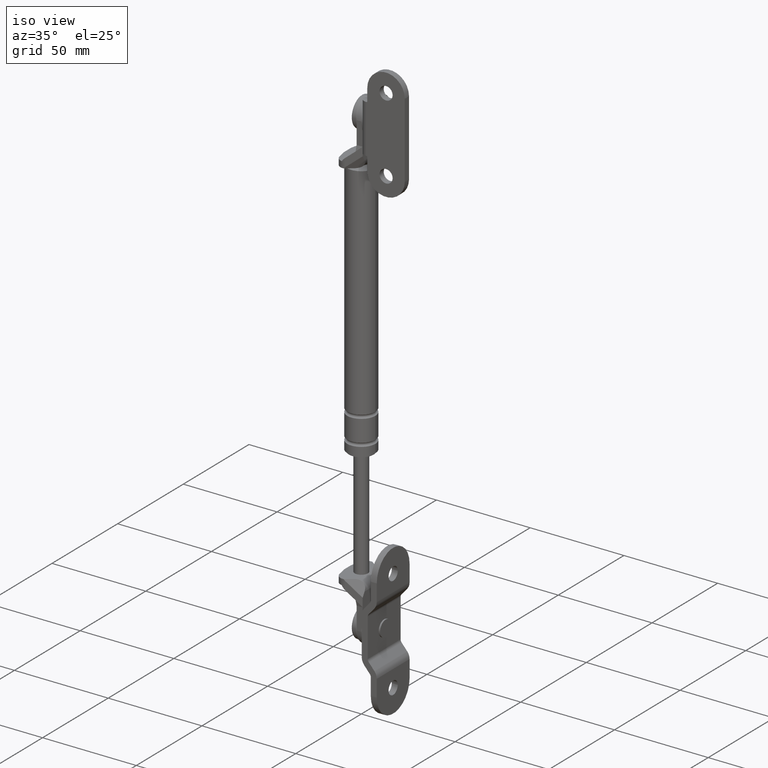
[diagram: clean part render]
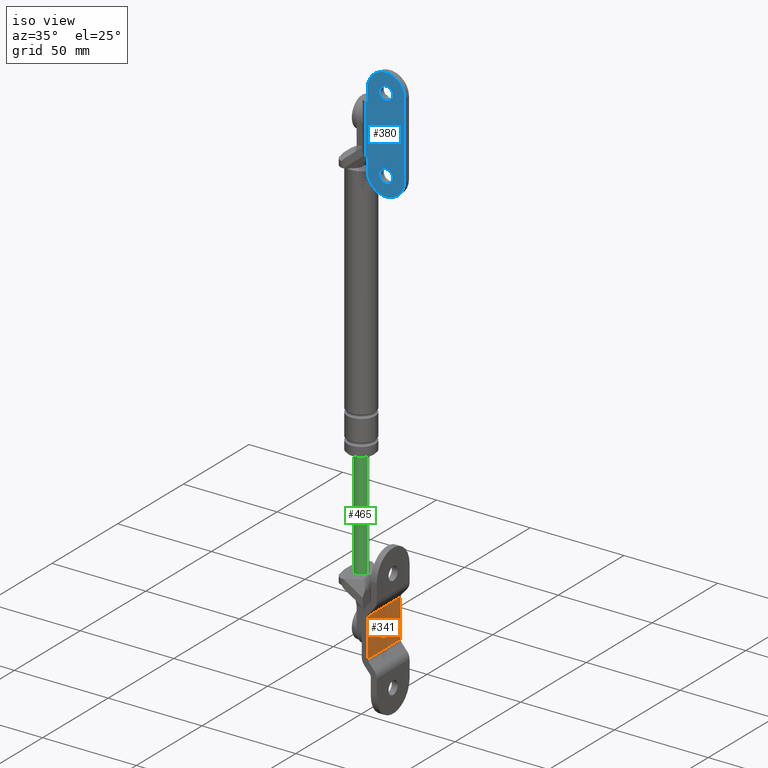
[diagram: same view with three faces highlighted in distinct colors, each labeled with its STEP entity id]
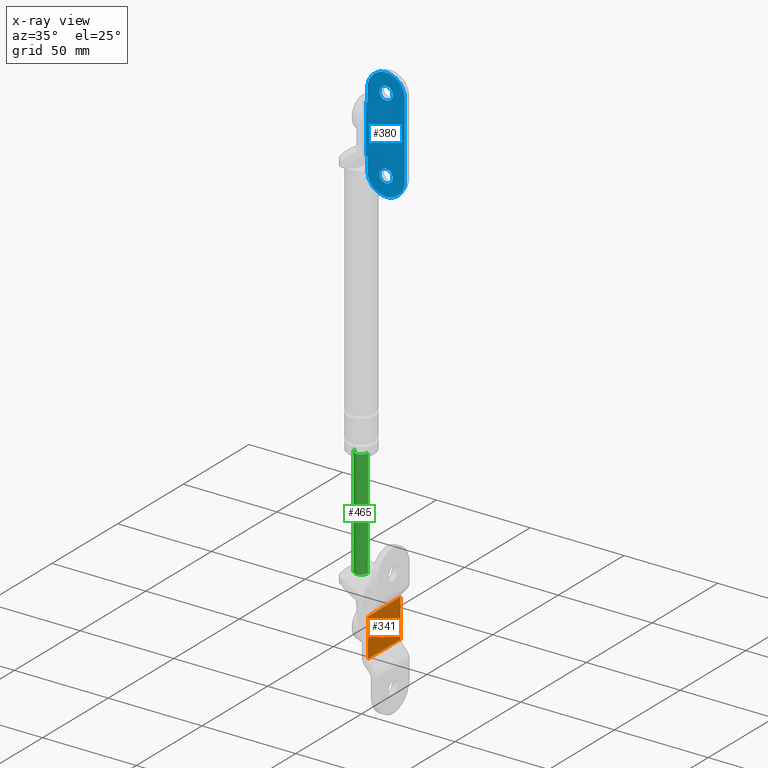
[diagram: x-ray of the same camera — body ghosted, the three highlighted faces saturated]
A machine part, iso view with three faces highlighted in distinct colors.
The next image is the same camera in x-ray (body ghosted, the three faces saturated) — at least one of them is partly hidden behind the body in this view.
Their STEP definitions:

[orange] entity #341 — the highlighted planar face has unit normal (-1, 0, 0).
#341=ADVANCED_FACE('',(#645,#646),#644,.F.);
#644=PLANE('',#2025);
#645=FACE_OUTER_BOUND('',#2026,.T.);
#646=FACE_BOUND('',#2027,.T.);
#2022=CARTESIAN_POINT('',(8.29409186090E+001,0.00000000000E+000,1.47258453631E+002));
#2023=DIRECTION('',(0.00000000000E+000,1.00000000000E+000,0.00000000000E+000));
#2024=DIRECTION('',(0.00000000000E+000,0.00000000000E+000,1.00000000000E+000));
#2025=AXIS2_PLACEMENT_3D('',#2022,#2023,#2024);
#2026=EDGE_LOOP('',(#3056,#3057,#3058,#3059));
#2027=EDGE_LOOP('',(#3060,#3061));
#3056=ORIENTED_EDGE('',*,*,#3739,.T.);
#3057=ORIENTED_EDGE('',*,*,#3738,.F.);
#3058=ORIENTED_EDGE('',*,*,#3740,.F.);
#3059=ORIENTED_EDGE('',*,*,#3741,.T.);
#3060=ORIENTED_EDGE('',*,*,#3742,.F.);
#3061=ORIENTED_EDGE('',*,*,#3743,.F.);
#3738=EDGE_CURVE('',#4340,#4333,#4347,.T.);
#3739=EDGE_CURVE('',#4353,#4333,#4354,.T.);
#3740=EDGE_CURVE('',#4360,#4340,#4361,.T.);
#3741=EDGE_CURVE('',#4360,#4353,#4367,.T.);
#3742=EDGE_CURVE('',#4373,#4374,#4375,.T.);
#3743=EDGE_CURVE('',#4374,#4373,#4381,.T.);
#4333=VERTEX_POINT('',#6581);
#4340=VERTEX_POINT('',#6586);
#4347=LINE('',#6591,#6592);
#4353=VERTEX_POINT('',#6594);
#4354=LINE('',#6595,#6596);
#4360=VERTEX_POINT('',#6598);
#4361=LINE('',#6599,#6600);
#4367=LINE('',#6602,#6603);
#4373=VERTEX_POINT('',#6605);
#4374=VERTEX_POINT('',#6606);
#4375=CIRCLE('',#6610,4.25000000000E+000);
#4381=CIRCLE('',#6614,4.25000000000E+000);
#6581=CARTESIAN_POINT('',(1.05504404217E+002,0.00000000000E+000,1.49758453631E+002));
#6586=CARTESIAN_POINT('',(1.05504404217E+002,0.00000000000E+000,1.74758453631E+002));
#6591=CARTESIAN_POINT('',(1.05504404217E+002,0.00000000000E+000,1.74758453631E+002));
#6592=VECTOR('',#6593,2.50000000000E+001);
#6593=DIRECTION('',(0.00000000000E+000,0.00000000000E+000,-1.00000000000E+000));
#6594=CARTESIAN_POINT('',(8.49921445734E+001,-1.99840144433E-015,1.49758453631E+002));
#6595=CARTESIAN_POINT('',(8.49921445734E+001,0.00000000000E+000,1.49758453631E+002));
#6596=VECTOR('',#6597,2.05122596438E+001);
#6597=DIRECTION('',(1.00000000000E+000,0.00000000000E+000,0.00000000000E+000));
#6598=CARTESIAN_POINT('',(8.49921445734E+001,-1.99840144433E-015,1.74758453631E+002));
#6599=CARTESIAN_POINT('',(8.49921445734E+001,0.00000000000E+000,1.74758453631E+002));
#6600=VECTOR('',#6601,2.05122596438E+001);
#6601=DIRECTION('',(1.00000000000E+000,0.00000000000E+000,0.00000000000E+000));
#6602=CARTESIAN_POINT('',(8.49921445734E+001,-1.99840144433E-015,1.74758453631E+002));
#6603=VECTOR('',#6604,2.50000000000E+001);
#6604=DIRECTION('',(0.00000000000E+000,0.00000000000E+000,-1.00000000000E+000));
#6605=CARTESIAN_POINT('',(9.52482743953E+001,0.00000000000E+000,1.58008453631E+002));
#6606=CARTESIAN_POINT('',(9.52482743953E+001,0.00000000000E+000,1.66508453631E+002));
#6607=CARTESIAN_POINT('',(9.52482743953E+001,0.00000000000E+000,1.62258453631E+002));
#6608=DIRECTION('',(-0.00000000000E+000,-1.00000000000E+000,0.00000000000E+000));
#6609=DIRECTION('',(-1.22460635382E-016,0.00000000000E+000,1.00000000000E+000));
#6610=AXIS2_PLACEMENT_3D('',#6607,#6608,#6609);
#6611=CARTESIAN_POINT('',(9.52482743953E+001,0.00000000000E+000,1.62258453631E+002));
#6612=DIRECTION('',(-0.00000000000E+000,-1.00000000000E+000,0.00000000000E+000));
#6613=DIRECTION('',(-1.22460635382E-016,0.00000000000E+000,1.00000000000E+000));
#6614=AXIS2_PLACEMENT_3D('',#6611,#6612,#6613);

[blue] entity #380 — the highlighted planar face has unit normal (0, -1, 0).
#380=ADVANCED_FACE('',(#1040,#1041,#1042),#1039,.T.);
#1039=PLANE('',#2309);
#1040=FACE_OUTER_BOUND('',#2310,.T.);
#1041=FACE_BOUND('',#2311,.T.);
#1042=FACE_BOUND('',#2312,.T.);
#2306=CARTESIAN_POINT('',(6.63047447386E+001,-2.28800000000E+001,1.90587479342E+002));
#2307=DIRECTION('',(0.00000000000E+000,0.00000000000E+000,1.00000000000E+000));
#2308=DIRECTION('',(1.00000000000E+000,0.00000000000E+000,0.00000000000E+000));
#2309=AXIS2_PLACEMENT_3D('',#2306,#2307,#2308);
#2310=EDGE_LOOP('',(#3248,#3249,#3250,#3251,#3252,#3253,#3254,#3255,#3256,#3257));
#2311=EDGE_LOOP('',(#3258,#3259));
#2312=EDGE_LOOP('',(#3260,#3261));
#3248=ORIENTED_EDGE('',*,*,#3833,.F.);
#3249=ORIENTED_EDGE('',*,*,#3834,.T.);
#3250=ORIENTED_EDGE('',*,*,#3835,.F.);
#3251=ORIENTED_EDGE('',*,*,#3836,.T.);
#3252=ORIENTED_EDGE('',*,*,#3831,.F.);
#3253=ORIENTED_EDGE('',*,*,#3828,.F.);
#3254=ORIENTED_EDGE('',*,*,#3837,.F.);
#3255=ORIENTED_EDGE('',*,*,#3838,.F.);
#3256=ORIENTED_EDGE('',*,*,#3839,.F.);
#3257=ORIENTED_EDGE('',*,*,#3840,.T.);
#3258=ORIENTED_EDGE('',*,*,#3841,.T.);
#3259=ORIENTED_EDGE('',*,*,#3842,.T.);
#3260=ORIENTED_EDGE('',*,*,#3843,.T.);
#3261=ORIENTED_EDGE('',*,*,#3844,.T.);
#3828=EDGE_CURVE('',#4937,#4944,#4945,.T.);
#3831=EDGE_CURVE('',#4944,#4964,#4965,.T.);
#3833=EDGE_CURVE('',#4977,#4978,#4979,.T.);
#3834=EDGE_CURVE('',#4977,#4985,#4986,.T.);
#3835=EDGE_CURVE('',#4992,#4985,#4993,.T.);
#3836=EDGE_CURVE('',#4992,#4964,#4999,.T.);
#3837=EDGE_CURVE('',#5005,#4937,#5006,.T.);
#3838=EDGE_CURVE('',#5012,#5005,#5013,.T.);
#3839=EDGE_CURVE('',#5019,#5012,#5020,.T.);
#3840=EDGE_CURVE('',#5019,#4978,#5026,.T.);
#3841=EDGE_CURVE('',#5032,#5033,#5034,.T.);
#3842=EDGE_CURVE('',#5033,#5032,#5040,.T.);
#3843=EDGE_CURVE('',#5046,#5047,#5048,.T.);
#3844=EDGE_CURVE('',#5047,#5046,#5054,.T.);
#4937=VERTEX_POINT('',#6943);
#4944=VERTEX_POINT('',#6947);
#4945=CIRCLE('',#6951,1.00000000000E+001);
#4964=VERTEX_POINT('',#6959);
#4965=LINE('',#6960,#6961);
#4977=VERTEX_POINT('',#6966);
#4978=VERTEX_POINT('',#6967);
#4979=LINE('',#6968,#6969);
#4985=VERTEX_POINT('',#6971);
#4986=LINE('',#6972,#6973);
#4992=VERTEX_POINT('',#6975);
#4993=LINE('',#6976,#6977);
#4999=CIRCLE('',#6982,5.00000000000E-001);
#5005=VERTEX_POINT('',#6983);
#5006=LINE('',#6984,#6985);
#5012=VERTEX_POINT('',#6987);
#5013=CIRCLE('',#6991,1.00000000000E+001);
#5019=VERTEX_POINT('',#6992);
#5020=LINE('',#6993,#6994);
#5026=CIRCLE('',#6999,5.00000000000E-001);
#5032=VERTEX_POINT('',#7000);
#5033=VERTEX_POINT('',#7001);
#5034=CIRCLE('',#7005,3.50000000000E+000);
#5040=CIRCLE('',#7009,3.50000000000E+000);
#5046=VERTEX_POINT('',#7010);
#5047=VERTEX_POINT('',#7011);
#5048=CIRCLE('',#7015,3.50000000000E+000);
#5054=CIRCLE('',#7019,3.50000000000E+000);
#6943=CARTESIAN_POINT('',(8.23047447386E+001,-2.08000000000E+001,1.90587479342E+002));
#6947=CARTESIAN_POINT('',(8.23047447386E+001,-8.00000000000E-001,1.90587479342E+002));
#6948=CARTESIAN_POINT('',(8.23047447386E+001,-1.08000000000E+001,1.90587479342E+002));
#6949=DIRECTION('',(0.00000000000E+000,0.00000000000E+000,-1.00000000000E+000));
#6950=DIRECTION('',(1.83690953073E-016,1.00000000000E+000,0.00000000000E+000));
#6951=AXIS2_PLACEMENT_3D('',#6948,#6949,#6950);
#6959=CARTESIAN_POINT('',(8.88047447386E+001,-8.00000000000E-001,1.90587479342E+002));
#6960=CARTESIAN_POINT('',(8.23047447386E+001,-8.00000000000E-001,1.90587479342E+002));
#6961=VECTOR('',#6962,6.50000000000E+000);
#6962=DIRECTION('',(1.00000000000E+000,0.00000000000E+000,0.00000000000E+000));
#6966=CARTESIAN_POINT('',(1.15304744739E+002,-2.53269627493E-013,1.90587479342E+002));
#6967=CARTESIAN_POINT('',(1.15304744739E+002,-3.00000000000E-001,1.90587479342E+002));
#6968=CARTESIAN_POINT('',(1.15304744739E+002,-2.53269627493E-013,1.90587479342E+002));
#6969=VECTOR('',#6970,3.00000000000E-001);
#6970=DIRECTION('',(0.00000000000E+000,-1.00000000000E+000,0.00000000000E+000));
#6971=CARTESIAN_POINT('',(8.93047447386E+001,-2.53269627493E-013,1.90587479342E+002));
#6972=CARTESIAN_POINT('',(1.15304744739E+002,-2.53269627493E-013,1.90587479342E+002));
#6973=VECTOR('',#6974,2.60000000000E+001);
#6974=DIRECTION('',(-1.00000000000E+000,0.00000000000E+000,0.00000000000E+000));
#6975=CARTESIAN_POINT('',(8.93047447386E+001,-3.00000000000E-001,1.90587479342E+002));
#6976=CARTESIAN_POINT('',(8.93047447386E+001,-3.00000000000E-001,1.90587479342E+002));
#6977=VECTOR('',#6978,3.00000000000E-001);
#6978=DIRECTION('',(0.00000000000E+000,1.00000000000E+000,0.00000000000E+000));
#6979=CARTESIAN_POINT('',(8.88047447386E+001,-3.00000000000E-001,1.90587479342E+002));
#6980=DIRECTION('',(0.00000000000E+000,0.00000000000E+000,-1.00000000000E+000));
#6981=DIRECTION('',(-1.00000000000E+000,-0.00000000000E+000,-0.00000000000E+000));
#6982=AXIS2_PLACEMENT_3D('',#6979,#6980,#6981);
#6983=CARTESIAN_POINT('',(1.22304744739E+002,-2.08000000000E+001,1.90587479342E+002));
#6984=CARTESIAN_POINT('',(1.22304744739E+002,-2.08000000000E+001,1.90587479342E+002));
#6985=VECTOR('',#6986,4.00000000000E+001);
#6986=DIRECTION('',(-1.00000000000E+000,2.22044604925E-015,0.00000000000E+000));
#6987=CARTESIAN_POINT('',(1.22304744739E+002,-8.00000000000E-001,1.90587479342E+002));
#6988=CARTESIAN_POINT('',(1.22304744739E+002,-1.08000000000E+001,1.90587479342E+002));
#6989=DIRECTION('',(0.00000000000E+000,0.00000000000E+000,-1.00000000000E+000));
#6990=DIRECTION('',(-1.00000000000E+000,-0.00000000000E+000,-0.00000000000E+000));
#6991=AXIS2_PLACEMENT_3D('',#6988,#6989,#6990);
#6992=CARTESIAN_POINT('',(1.15804744739E+002,-8.00000000000E-001,1.90587479342E+002));
#6993=CARTESIAN_POINT('',(1.15804744739E+002,-8.00000000000E-001,1.90587479342E+002));
#6994=VECTOR('',#6995,6.50000000000E+000);
#6995=DIRECTION('',(1.00000000000E+000,0.00000000000E+000,0.00000000000E+000));
#6996=CARTESIAN_POINT('',(1.15804744739E+002,-3.00000000000E-001,1.90587479342E+002));
#6997=DIRECTION('',(0.00000000000E+000,0.00000000000E+000,-1.00000000000E+000));
#6998=DIRECTION('',(-1.00000000000E+000,-0.00000000000E+000,-0.00000000000E+000));
#6999=AXIS2_PLACEMENT_3D('',#6996,#6997,#6998);
#7000=CARTESIAN_POINT('',(8.58047447386E+001,-1.08000000000E+001,1.90587479342E+002));
#7001=CARTESIAN_POINT('',(7.88047447386E+001,-1.08000000000E+001,1.90587479342E+002));
#7002=CARTESIAN_POINT('',(8.23047447386E+001,-1.08000000000E+001,1.90587479342E+002));
#7003=DIRECTION('',(0.00000000000E+000,-0.00000000000E+000,-1.00000000000E+000));
#7004=DIRECTION('',(1.00000000000E+000,-1.22460635382E-016,0.00000000000E+000));
#7005=AXIS2_PLACEMENT_3D('',#7002,#7003,#7004);
#7006=CARTESIAN_POINT('',(8.23047447386E+001,-1.08000000000E+001,1.90587479342E+002));
#7007=DIRECTION('',(0.00000000000E+000,-0.00000000000E+000,-1.00000000000E+000));
#7008=DIRECTION('',(1.00000000000E+000,-1.22460635382E-016,0.00000000000E+000));
#7009=AXIS2_PLACEMENT_3D('',#7006,#7007,#7008);
#7010=CARTESIAN_POINT('',(1.25804744739E+002,-1.08000000000E+001,1.90587479342E+002));
#7011=CARTESIAN_POINT('',(1.18804744739E+002,-1.08000000000E+001,1.90587479342E+002));
#7012=CARTESIAN_POINT('',(1.22304744739E+002,-1.08000000000E+001,1.90587479342E+002));
#7013=DIRECTION('',(0.00000000000E+000,-0.00000000000E+000,-1.00000000000E+000));
#7014=DIRECTION('',(1.00000000000E+000,-1.22460635382E-016,0.00000000000E+000));
#7015=AXIS2_PLACEMENT_3D('',#7012,#7013,#7014);
#7016=CARTESIAN_POINT('',(1.22304744739E+002,-1.08000000000E+001,1.90587479342E+002));
#7017=DIRECTION('',(0.00000000000E+000,-0.00000000000E+000,-1.00000000000E+000));
#7018=DIRECTION('',(1.00000000000E+000,-1.22460635382E-016,0.00000000000E+000));
#7019=AXIS2_PLACEMENT_3D('',#7016,#7017,#7018);

[green] entity #465 — the highlighted cylindrical surface (edge-blend (fillet) strip) has radius 3.5 mm, axis along (0, 0, 1).
#465=ADVANCED_FACE('',(#1902),#1901,.T.);
#1901=CYLINDRICAL_SURFACE('',#2972,3.50000000000E+000);
#1902=FACE_OUTER_BOUND('',#2973,.T.);
#2969=CARTESIAN_POINT('',(0.00000000000E+000,0.00000000000E+000,0.00000000000E+000));
#2970=DIRECTION('',(-0.00000000000E+000,-0.00000000000E+000,1.00000000000E+000));
#2971=DIRECTION('',(1.00000000000E+000,-0.00000000000E+000,-0.00000000000E+000));
#2972=AXIS2_PLACEMENT_3D('',#2969,#2970,#2971);
#2973=EDGE_LOOP('',(#3681,#3682,#3683,#3684,#3685));
#3681=ORIENTED_EDGE('',*,*,#4016,.F.);
#3682=ORIENTED_EDGE('',*,*,#4011,.F.);
#3683=ORIENTED_EDGE('',*,*,#4045,.T.);
#3684=ORIENTED_EDGE('',*,*,#4013,.F.);
#3685=ORIENTED_EDGE('',*,*,#4046,.F.);
#4011=EDGE_CURVE('',#6156,#6163,#6164,.T.);
#4013=EDGE_CURVE('',#6176,#6177,#6178,.T.);
#4016=EDGE_CURVE('',#6163,#6197,#6198,.T.);
#4045=EDGE_CURVE('',#6156,#6177,#6383,.T.);
#4046=EDGE_CURVE('',#6197,#6176,#6389,.T.);
#6156=VERTEX_POINT('',#7689);
#6163=VERTEX_POINT('',#7694);
#6164=CIRCLE('',#7698,3.50000000000E+000);
#6176=VERTEX_POINT('',#7702);
#6177=VERTEX_POINT('',#7703);
#6178=CIRCLE('',#7707,3.50000000000E+000);
#6197=VERTEX_POINT('',#7716);
#6198=CIRCLE('',#7720,3.50000000000E+000);
#6383=(BOUNDED_CURVE() B_SPLINE_CURVE(1,(#7822,#7823),.UNSPECIFIED.,.F.,.F.) B_SPLINE_CURVE_WITH_KNOTS((2,2),(8.33333332085E-002,9.16666666222E-001),.UNSPECIFIED.) CURVE() GEOMETRIC_REPRESENTATION_ITEM() RATIONAL_B_SPLINE_CURVE((1.00000000000E+000,1.00000000000E+000)) REPRESENTATION_ITEM('') );
#6389=(BOUNDED_CURVE() B_SPLINE_CURVE(1,(#7824,#7825),.UNSPECIFIED.,.F.,.F.) B_SPLINE_CURVE_WITH_KNOTS((2,2),(8.33333333333E-002,9.16666666667E-001),.UNSPECIFIED.) CURVE() GEOMETRIC_REPRESENTATION_ITEM() RATIONAL_B_SPLINE_CURVE((7.50000000000E-001,7.50000000000E-001)) REPRESENTATION_ITEM('') );
#7689=CARTESIAN_POINT('',(3.50000000000E+000,0.00000000000E+000,-1.09000015000E+002));
#7694=CARTESIAN_POINT('',(2.00000000000E+000,-2.87228132327E+000,-1.09000015000E+002));
#7695=CARTESIAN_POINT('',(0.00000000000E+000,0.00000000000E+000,-1.09000015000E+002));
#7696=DIRECTION('',(0.00000000000E+000,0.00000000000E+000,-1.00000000000E+000));
#7697=DIRECTION('',(5.71428571429E-001,8.20651806648E-001,0.00000000000E+000));
#7698=AXIS2_PLACEMENT_3D('',#7695,#7696,#7697);
#7702=CARTESIAN_POINT('',(-3.50000000000E+000,0.00000000000E+000,-5.10000000000E+001));
#7703=CARTESIAN_POINT('',(3.50000000000E+000,4.44089209850E-016,-5.10000000000E+001));
#7704=CARTESIAN_POINT('',(0.00000000000E+000,0.00000000000E+000,-5.10000000000E+001));
#7705=DIRECTION('',(0.00000000000E+000,0.00000000000E+000,1.00000000000E+000));
#7706=DIRECTION('',(-1.00000000000E+000,-1.22460635382E-016,0.00000000000E+000));
#7707=AXIS2_PLACEMENT_3D('',#7704,#7705,#7706);
#7716=CARTESIAN_POINT('',(-3.50000000000E+000,-1.45175480991E-007,-1.09000015000E+002));
#7717=CARTESIAN_POINT('',(0.00000000000E+000,0.00000000000E+000,-1.09000015000E+002));
#7718=DIRECTION('',(0.00000000000E+000,0.00000000000E+000,-1.00000000000E+000));
#7719=DIRECTION('',(1.00000000000E+000,-0.00000000000E+000,-0.00000000000E+000));
#7720=AXIS2_PLACEMENT_3D('',#7717,#7718,#7719);
#7822=CARTESIAN_POINT('',(3.50000000000E+000,0.00000000000E+000,-1.09000015009E+002));
#7823=CARTESIAN_POINT('',(3.50000000000E+000,0.00000000000E+000,-5.10000000310E+001));
#7824=CARTESIAN_POINT('',(-3.50000000000E+000,0.00000000000E+000,-1.09000015000E+002));
#7825=CARTESIAN_POINT('',(-3.50000000000E+000,0.00000000000E+000,-5.10000000000E+001));